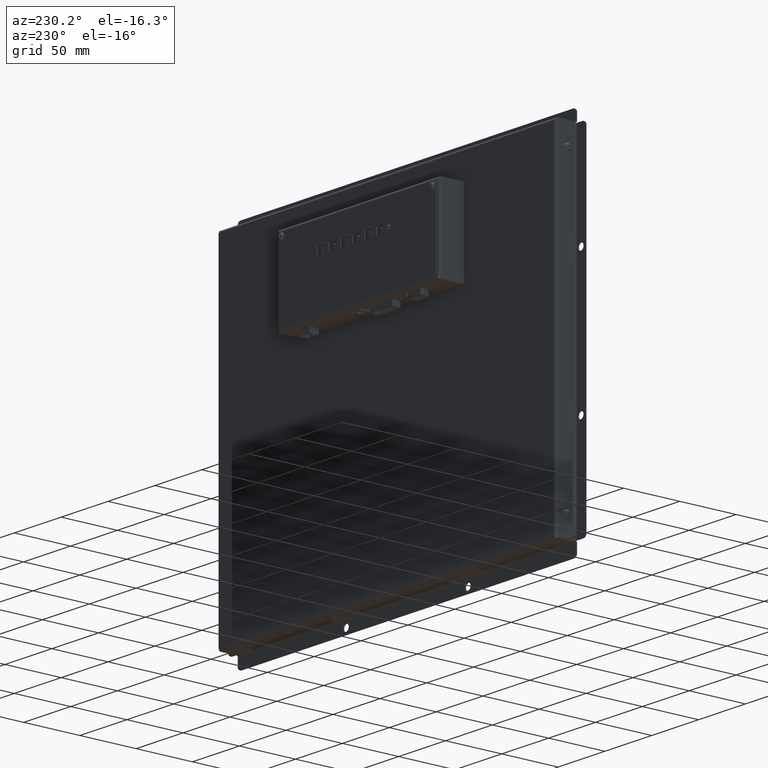
[diagram: clean part render]
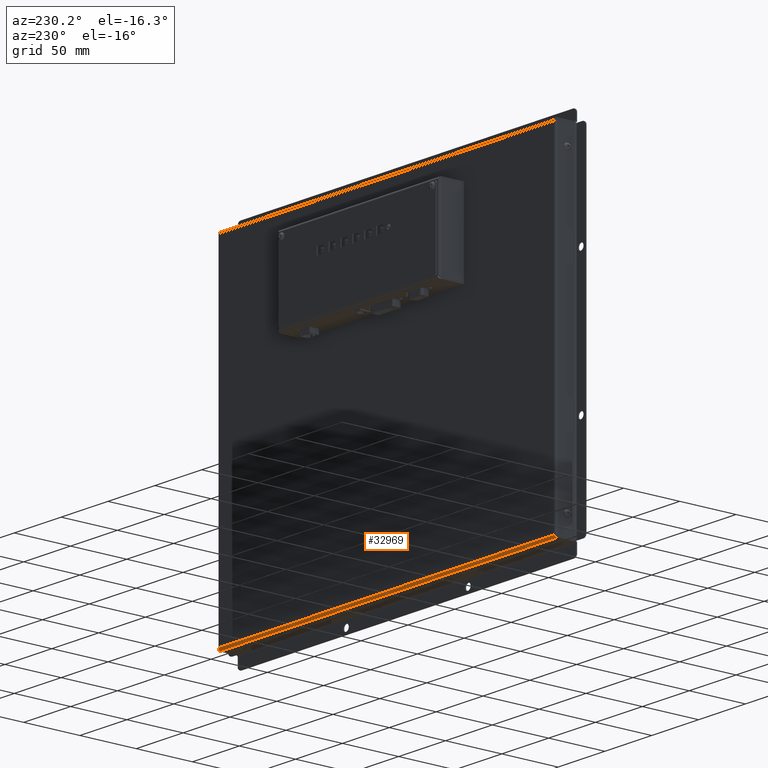
[diagram: same view with one face highlighted and labeled with its STEP entity id]
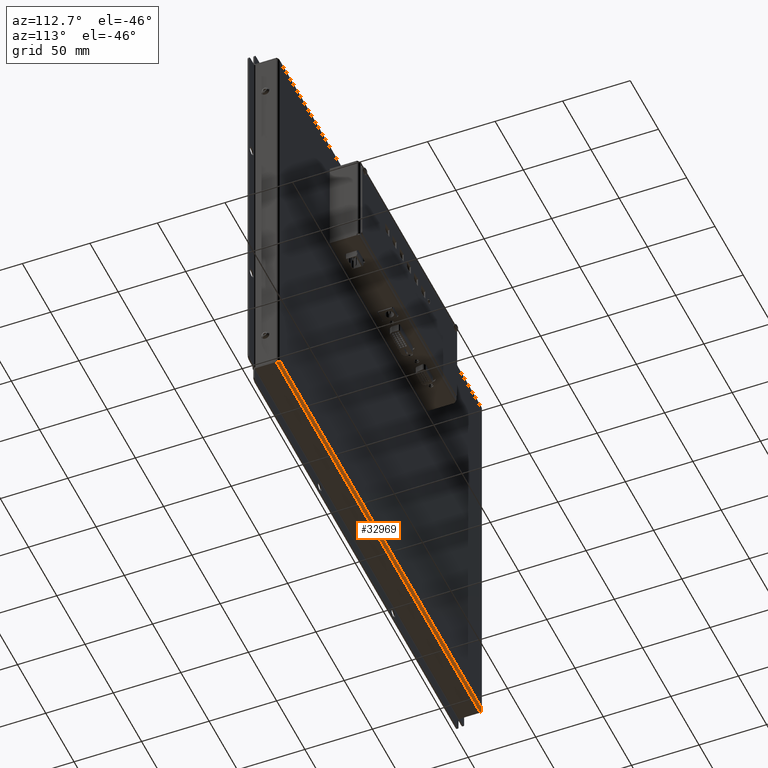
[diagram: same view with one face highlighted and labeled with its STEP entity id]
A machine part, auxiliary view. The second image highlights one B-rep face of the part: STEP entity #32969.
A second angle (auxiliary view) of the same face is appended — the face is thin or edge-on in the first view.
In plain terms, the highlighted cylindrical surface (edge-blend (fillet) strip) has radius 2 mm, axis along (-1, 0, -0).
Its self-contained STEP definition (entity closure, byte-faithful):
#1770=B_SPLINE_CURVE_WITH_KNOTS('',3,(#48436,#48437,#48438,#48439,#48440,
#48441,#48442),.UNSPECIFIED.,.F.,.F.,(4,3,4),(-1.,-0.571428571428569,0.),
 .UNSPECIFIED.);
#1772=B_SPLINE_CURVE_WITH_KNOTS('',3,(#48515,#48516,#48517,#48518,#48519,
#48520,#48521),.UNSPECIFIED.,.F.,.F.,(4,3,4),(-1.,-0.571428571428574,0.),
 .UNSPECIFIED.);
#3613=FACE_OUTER_BOUND('',#5505,.T.);
#5505=EDGE_LOOP('',(#23692,#23693,#23694,#23695));
#7679=LINE('',#47931,#10889);
#7741=LINE('',#48546,#10951);
#10889=VECTOR('',#38760,10.);
#10951=VECTOR('',#38928,10.);
#15326=VERTEX_POINT('',#47928);
#15327=VERTEX_POINT('',#47930);
#15360=VERTEX_POINT('',#48179);
#15367=VERTEX_POINT('',#48331);
#18564=EDGE_CURVE('',#15326,#15327,#7679,.T.);
#18657=EDGE_CURVE('',#15327,#15367,#1770,.T.);
#18660=EDGE_CURVE('',#15326,#15360,#1772,.T.);
#18662=EDGE_CURVE('',#15367,#15360,#7741,.T.);
#23692=ORIENTED_EDGE('',*,*,#18564,.F.);
#23693=ORIENTED_EDGE('',*,*,#18660,.T.);
#23694=ORIENTED_EDGE('',*,*,#18662,.F.);
#23695=ORIENTED_EDGE('',*,*,#18657,.F.);
#32427=CYLINDRICAL_SURFACE('',#35387,2.);
#32969=ADVANCED_FACE('',(#3613),#32427,.T.);
#35387=AXIS2_PLACEMENT_3D('',#48545,#38926,#38927);
#38760=DIRECTION('',(1.,8.80464882824781E-19,-7.76618615726204E-33));
#38926=DIRECTION('center_axis',(-1.,0.,0.));
#38927=DIRECTION('ref_axis',(0.,0.,-1.));
#38928=DIRECTION('',(-1.,0.,0.));
#47928=CARTESIAN_POINT('',(-180.5,-149.5,2.00000000000002));
#47930=CARTESIAN_POINT('',(180.5,-149.5,2.00000000000002));
#47931=CARTESIAN_POINT('',(6.38402892176184E-15,-149.5,2.00000000000003));
#48179=CARTESIAN_POINT('',(-178.5,-147.5,-2.77555756156289E-16));
#48331=CARTESIAN_POINT('',(178.5,-147.5,-2.77555756156289E-16));
#48436=CARTESIAN_POINT('Ctrl Pts',(180.5,-149.5,2.00000000000002));
#48437=CARTESIAN_POINT('Ctrl Pts',(180.214285714285,-149.5,1.55120104948726));
#48438=CARTESIAN_POINT('Ctrl Pts',(179.928571428572,-149.343278179263,1.10163731743829));
#48439=CARTESIAN_POINT('Ctrl Pts',(179.642857142857,-149.063452356018,0.75249944866833));
#48440=CARTESIAN_POINT('Ctrl Pts',(179.261904761905,-148.690351258359,0.286982290308387));
#48441=CARTESIAN_POINT('Ctrl Pts',(178.880952380949,-148.098398600684,5.01415548251243E-15));
#48442=CARTESIAN_POINT('Ctrl Pts',(178.5,-147.5,-1.38777878078074E-16));
#48515=CARTESIAN_POINT('Ctrl Pts',(-180.5,-149.5,2.00000000000001));
#48516=CARTESIAN_POINT('Ctrl Pts',(-180.214285714282,-149.5,1.55120104948726));
#48517=CARTESIAN_POINT('Ctrl Pts',(-179.92857142857,-149.343278179263,1.10163731743828));
#48518=CARTESIAN_POINT('Ctrl Pts',(-179.642857142857,-149.063452356018,
0.752499448668319));
#48519=CARTESIAN_POINT('Ctrl Pts',(-179.261904761907,-148.690351258359,
0.286982290308365));
#48520=CARTESIAN_POINT('Ctrl Pts',(-178.880952380957,-148.098398600684,
-1.99493199737333E-16));
#48521=CARTESIAN_POINT('Ctrl Pts',(-178.5,-147.5,-2.77555756156289E-16));
#48545=CARTESIAN_POINT('Origin',(0.,-147.5,2.));
#48546=CARTESIAN_POINT('',(89.25,-147.5,0.));